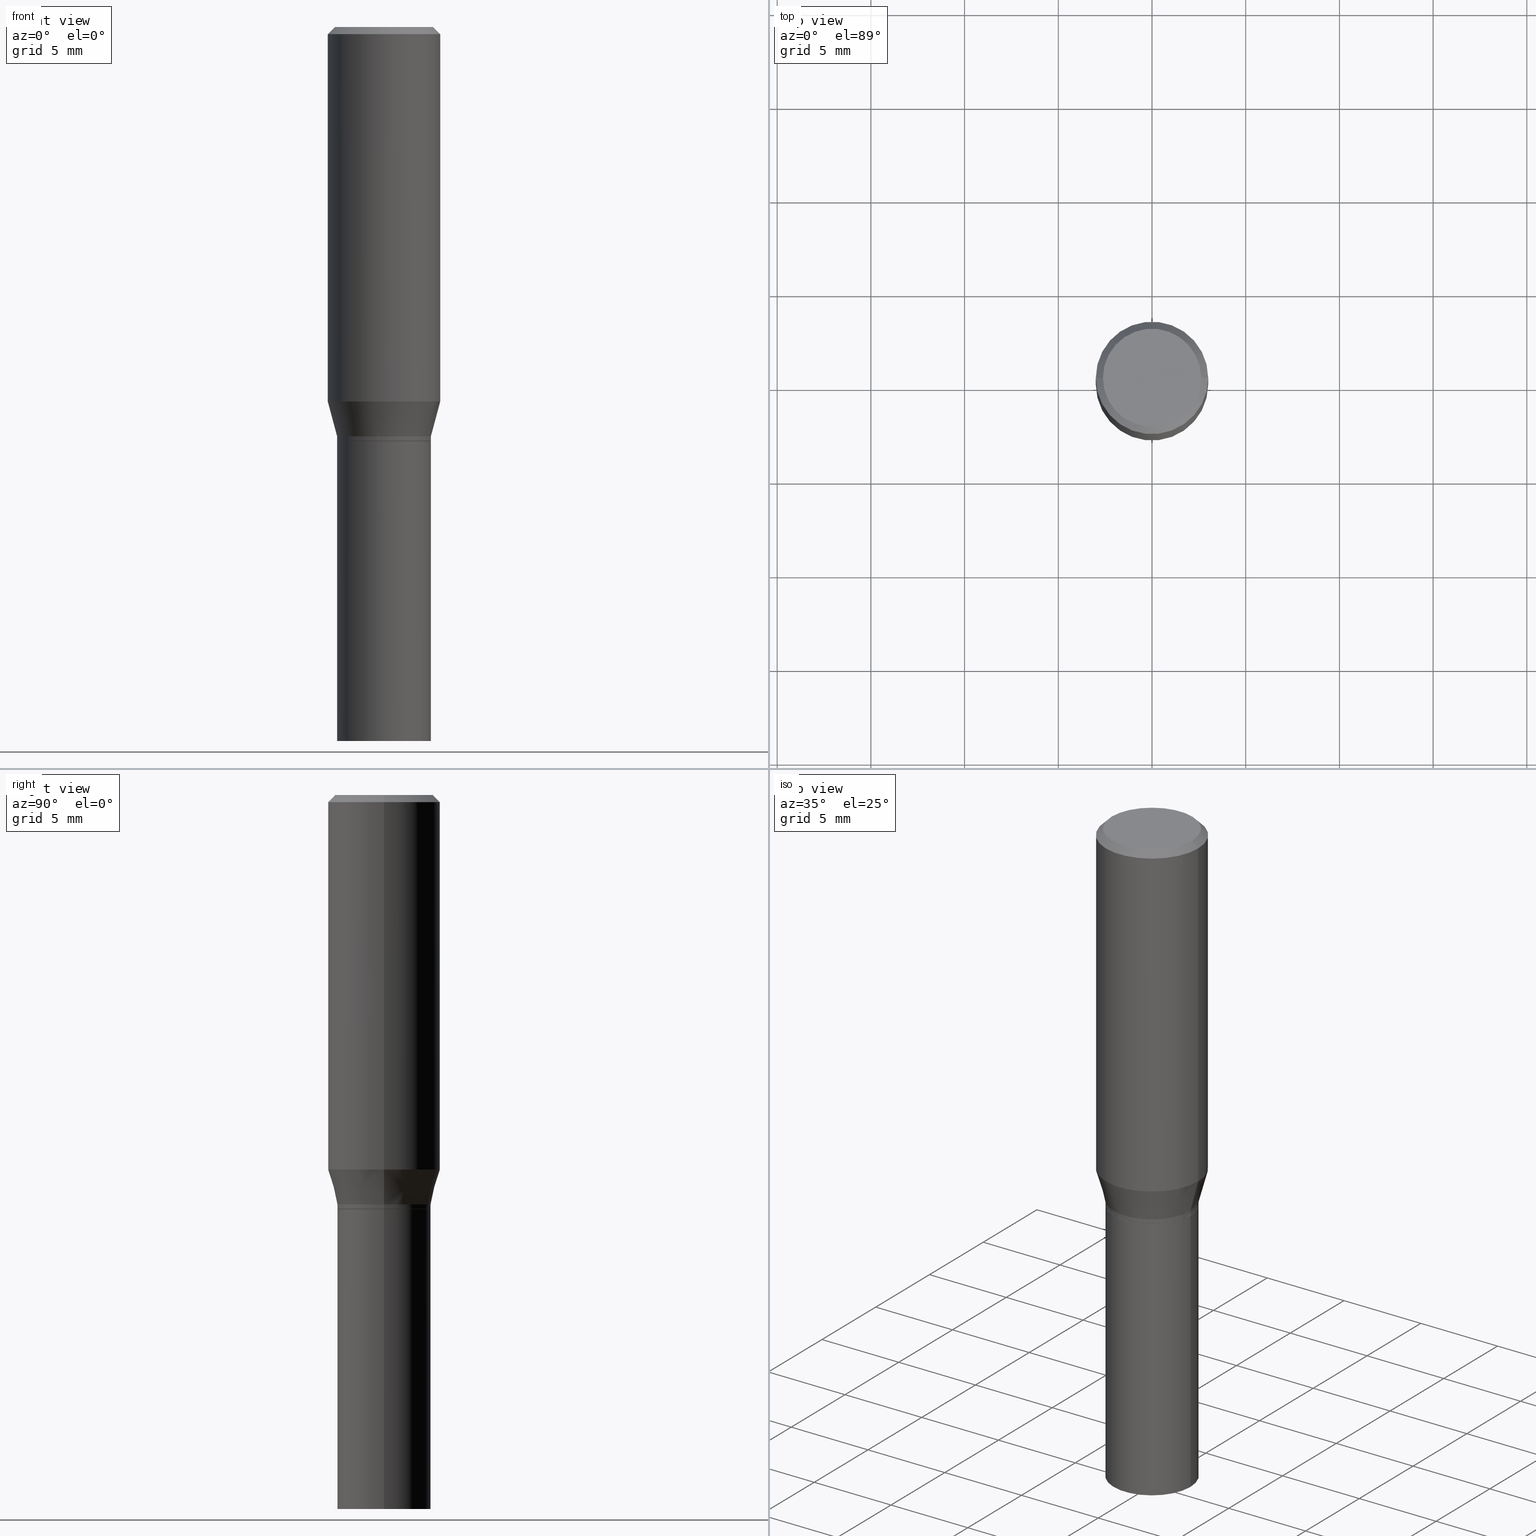
[diagram: canonical four-view strip — front | top / right | iso, engineering-drawing reading convention]
A machine part, canonical four-view strip (front | top / right | iso — engineering-drawing reading convention). The complete STEP part file that produces these views, byte-faithful:
ISO-10303-21;
HEADER;
FILE_DESCRIPTION (( 'STEP AP203' ),
    '1' );
FILE_NAME ('48807.STEP',
    '2024-03-12T19:54:19',
    ( '' ),
    ( '' ),
    'SwSTEP 2.0',
    'SolidWorks 2023',
    '' );
FILE_SCHEMA (( 'CONFIG_CONTROL_DESIGN' ));
ENDSEC;

DATA;
#1 = CARTESIAN_POINT ( 'NONE',  ( 3.668203209277705088E-31, -5.237222008264718399E-17, -0.01499999999999999944 ) ) ;
#2 = ORIENTED_EDGE ( 'NONE', *, *, #24, .F. ) ;
#3 = DIRECTION ( 'NONE',  ( -0.2588190451025215166, 5.211531920934551042E-15, 0.9659258262890679791 ) ) ;
#4 = EDGE_LOOP ( 'NONE', ( #287, #443, #262, #293 ) ) ;
#5 = EDGE_CURVE ( 'NONE', #220, #175, #407, .T. ) ;
#6 = PLANE ( 'NONE',  #46 ) ;
#7 = AXIS2_PLACEMENT_3D ( 'NONE', #168, #421, #238 ) ;
#8 = ORIENTED_EDGE ( 'NONE', *, *, #108, .F. ) ;
#9 = VECTOR ( 'NONE', #3, 39.37007874015748143 ) ;
#10 = ADVANCED_BREP_SHAPE_REPRESENTATION ( '48807', ( #27, #346, #251 ), #420 ) ;
#11 = PERSON_AND_ORGANIZATION_ROLE ( 'design_supplier' ) ;
#12 = ORIENTED_EDGE ( 'NONE', *, *, #279, .T. ) ;
#13 = COORDINATED_UNIVERSAL_TIME_OFFSET ( 5, 0, .BEHIND. ) ;
#14 = FACE_OUTER_BOUND ( 'NONE', #300, .T. ) ;
#15 = LENGTH_MEASURE_WITH_UNIT ( LENGTH_MEASURE( 0.02539999999999999897 ), #224 );
#16 = DIRECTION ( 'NONE',  ( -2.445468806185136597E-29, 3.491481338843145583E-15, 1.000000000000000000 ) ) ;
#17 = VECTOR ( 'NONE', #351, 39.37007874015748143 ) ;
#18 = CC_DESIGN_APPROVAL ( #309, ( #424 ) ) ;
#19 = COORDINATED_UNIVERSAL_TIME_OFFSET ( 5, 0, .BEHIND. ) ;
#20 = CARTESIAN_POINT ( 'NONE',  ( 2.127802408261687814E-29, -3.037937912927421995E-15, -0.8701000000000002066 ) ) ;
#21 = ORIENTED_EDGE ( 'NONE', *, *, #455, .T. ) ;
#22 = DIRECTION ( 'NONE',  ( 1.000000000000000000, -6.982962677686265922E-15, 4.883331232093008327E-29 ) ) ;
#23 = CARTESIAN_POINT ( 'NONE',  ( -0.09794999999999999540, -2.341961303250403994E-15, -0.8701000000000002066 ) ) ;
#24 = EDGE_CURVE ( 'NONE', #392, #359, #60, .T. ) ;
#25 = ORIENTED_EDGE ( 'NONE', *, *, #83, .F. ) ;
#26 = DIRECTION ( 'NONE',  ( -1.000000000000000000, 6.982962677686266711E-15, 0.000000000000000000 ) ) ;
#27 = MANIFOLD_SOLID_BREP ( 'Body-Move/Copy2[1]', #45 ) ;
#28 = ADVANCED_FACE ( 'NONE', ( #271 ), #333, .T. ) ;
#29 = FACE_OUTER_BOUND ( 'NONE', #249, .T. ) ;
#30 = AXIS2_PLACEMENT_3D ( 'NONE', #458, #31, #423 ) ;
#31 = DIRECTION ( 'NONE',  ( 2.438088387897960049E-29, -3.491481338843145188E-15, -1.000000000000000000 ) ) ;
#32 = DIRECTION ( 'NONE',  ( 1.000000000000000000, -6.982962677686265922E-15, 0.000000000000000000 ) ) ;
#33 = ORIENTED_EDGE ( 'NONE', *, *, #71, .T. ) ;
#34 = DIRECTION ( 'NONE',  ( -1.000000000000000000, 6.982962677686266711E-15, 0.000000000000000000 ) ) ;
#35 = ORIENTED_EDGE ( 'NONE', *, *, #41, .F. ) ;
#36 = CIRCLE ( 'NONE', #444, 0.1031000000000000111 ) ;
#37 = CARTESIAN_POINT ( 'NONE',  ( 4.647400995173613138E-45, -6.635256932220833331E-31, -1.900413116462290932E-16 ) ) ;
#38 = VERTEX_POINT ( 'NONE', #82 ) ;
#39 = CARTESIAN_POINT ( 'NONE',  ( 2.103347720199836269E-29, -3.003023099538989951E-15, -0.8601000000000000867 ) ) ;
#40 = VERTEX_POINT ( 'NONE', #52 ) ;
#41 = EDGE_CURVE ( 'NONE', #380, #70, #228, .T. ) ;
#42 = FACE_OUTER_BOUND ( 'NONE', #366, .T. ) ;
#43 = ORIENTED_EDGE ( 'NONE', *, *, #438, .F. ) ;
#44 = CC_DESIGN_PERSON_AND_ORGANIZATION_ASSIGNMENT ( #123, #191, ( #424 ) ) ;
#45 = CLOSED_SHELL ( 'NONE', ( #288, #125, #237, #367 ) ) ;
#46 = AXIS2_PLACEMENT_3D ( 'NONE', #365, #435, #360 ) ;
#47 = DATE_AND_TIME ( #90, #457 ) ;
#48 = DIRECTION ( 'NONE',  ( -2.445468806185136597E-29, 3.491481338843145583E-15, 1.000000000000000000 ) ) ;
#49 = ADVANCED_FACE ( 'NONE', ( #89 ), #122, .T. ) ;
#50 =( CONVERSION_BASED_UNIT ( 'INCH', #15 ) LENGTH_UNIT ( ) NAMED_UNIT ( #408 ) );
#51 = CARTESIAN_POINT ( 'NONE',  ( 0.09845000000000017626, -3.690495775157203695E-15, -0.8601000000000000867 ) ) ;
#52 = CARTESIAN_POINT ( 'NONE',  ( -0.1180999999999999966, -5.605231488820216014E-16, -0.01499999999999999944 ) ) ;
#53 = PERSON_AND_ORGANIZATION_ROLE ( 'design_owner' ) ;
#54 = ORIENTED_EDGE ( 'NONE', *, *, #388, .F. ) ;
#55 = PERSON_AND_ORGANIZATION ( #281, #213 ) ;
#56 = CARTESIAN_POINT ( 'NONE',  ( 0.1180999999999999966, -8.625970336194650129E-16, -0.01499999999999999944 ) ) ;
#57 = EDGE_CURVE ( 'NONE', #105, #151, #230, .T. ) ;
#58 = CARTESIAN_POINT ( 'NONE',  ( 4.647400995173613138E-45, -6.635256932220833331E-31, -1.900413116462290932E-16 ) ) ;
#59 = CARTESIAN_POINT ( 'NONE',  ( -0.1180999999999999966, 8.391509709326782957E-16, -5.809262341591043784E-30 ) ) ;
#60 = CIRCLE ( 'NONE', #369, 0.09794999999999999540 ) ;
#61 = CIRCLE ( 'NONE', #269, 0.1180999999999999966 ) ;
#62 = CARTESIAN_POINT ( 'NONE',  ( -0.09844999999999999585, -3.438050637240251581E-15, -0.8701000000000000956 ) ) ;
#63 = APPROVAL ( #261, 'UNSPECIFIED' ) ;
#64 = FACE_OUTER_BOUND ( 'NONE', #177, .T. ) ;
#65 = CARTESIAN_POINT ( 'NONE',  ( 2.127802408261687534E-29, -3.037937912927421601E-15, -0.8701000000000000956 ) ) ;
#66 = AXIS2_PLACEMENT_3D ( 'NONE', #391, #460, #182 ) ;
#67 = AXIS2_PLACEMENT_3D ( 'NONE', #286, #69, #208 ) ;
#68 = DIRECTION ( 'NONE',  ( -2.445468806185136597E-29, 3.491481338843145583E-15, 1.000000000000000000 ) ) ;
#69 = DIRECTION ( 'NONE',  ( -2.445468806185136597E-29, 3.491481338843145583E-15, 1.000000000000000000 ) ) ;
#70 = VERTEX_POINT ( 'NONE', #51 ) ;
#71 = EDGE_CURVE ( 'NONE', #38, #175, #155, .T. ) ;
#72 = DIRECTION ( 'NONE',  ( -2.445468806185136597E-29, 3.491481338843145583E-15, 1.000000000000000000 ) ) ;
#73 = EDGE_LOOP ( 'NONE', ( #344, #322 ) ) ;
#74 = AXIS2_PLACEMENT_3D ( 'NONE', #447, #48, #127 ) ;
#75 = CARTESIAN_POINT ( 'NONE',  ( 0.000000000000000000, 0.000000000000000000, 0.000000000000000000 ) ) ;
#76 = EDGE_CURVE ( 'NONE', #359, #392, #148, .T. ) ;
#77 = VERTEX_POINT ( 'NONE', #267 ) ;
#78 = DIRECTION ( 'NONE',  ( 1.000000000000000000, -6.982962677686265133E-15, 0.000000000000000000 ) ) ;
#79 = ORIENTED_EDGE ( 'NONE', *, *, #76, .F. ) ;
#80 = APPLICATION_CONTEXT ( 'configuration controlled 3d designs of mechanical parts and assemblies' ) ;
#81 = CALENDAR_DATE ( 2024, 12, 3 ) ;
#82 = CARTESIAN_POINT ( 'NONE',  ( 0.1031000000000000111, -7.849571885948552706E-16, -1.900413116462238423E-16 ) ) ;
#83 = EDGE_CURVE ( 'NONE', #140, #151, #186, .T. ) ;
#84 = CIRCLE ( 'NONE', #66, 0.1180999999999999966 ) ;
#85 = DATE_AND_TIME ( #336, #166 ) ;
#86 = CC_DESIGN_APPROVAL ( #63, ( #464 ) ) ;
#87 = CARTESIAN_POINT ( 'NONE',  ( 0.1180999999999999966, -8.246878922347480654E-16, 5.758764772215000440E-30 ) ) ;
#88 = VERTEX_POINT ( 'NONE', #303 ) ;
#89 = FACE_OUTER_BOUND ( 'NONE', #188, .T. ) ;
#90 = CALENDAR_DATE ( 2024, 12, 3 ) ;
#91 = LINE ( 'NONE', #372, #339 ) ;
#92 = EDGE_CURVE ( 'NONE', #392, #430, #223, .T. ) ;
#93 = AXIS2_PLACEMENT_3D ( 'NONE', #335, #305, #159 ) ;
#94 = DIRECTION ( 'NONE',  ( -0.7071067811863663843, 7.493145998869699406E-15, 0.7071067811867286501 ) ) ;
#95 = CC_DESIGN_PERSON_AND_ORGANIZATION_ASSIGNMENT ( #332, #11, ( #378 ) ) ;
#96 = DIRECTION ( 'NONE',  ( -0.7071067811865516806, 2.468850131082300842E-15, -0.7071067811865431318 ) ) ;
#97 = DATE_AND_TIME ( #270, #171 ) ;
#98 = CARTESIAN_POINT ( 'NONE',  ( -0.09845000000000005136, 6.995293233558189979E-16, -4.842691596355956844E-30 ) ) ;
#99 = CONICAL_SURFACE ( 'NONE', #396, 0.1180999999999999966, 0.7853981633974543852 ) ;
#100 = CARTESIAN_POINT ( 'NONE',  ( 3.576687321579069994E-29, -5.368277968210015545E-15, -1.500000000000000222 ) ) ;
#101 = CARTESIAN_POINT ( 'NONE',  ( 0.09844999999999999585, -5.924694683882931526E-15, -1.500000000000000222 ) ) ;
#102 = DIRECTION ( 'NONE',  ( -2.445468806185136597E-29, 3.491481338843145583E-15, 1.000000000000000000 ) ) ;
#103 = CIRCLE ( 'NONE', #135, 0.09844999999999999585 ) ;
#104 = CARTESIAN_POINT ( 'NONE',  ( -0.09845000000000017626, -2.303493776183169474E-15, -0.8601000000000000867 ) ) ;
#105 = VERTEX_POINT ( 'NONE', #410 ) ;
#106 = DIRECTION ( 'NONE',  ( 1.000000000000000000, -6.982962677686266711E-15, 4.876176775795935232E-29 ) ) ;
#107 = ORIENTED_EDGE ( 'NONE', *, *, #41, .T. ) ;
#108 = EDGE_CURVE ( 'NONE', #430, #70, #91, .T. ) ;
#109 = LINE ( 'NONE', #142, #294 ) ;
#110 = ORIENTED_EDGE ( 'NONE', *, *, #172, .T. ) ;
#111 = VECTOR ( 'NONE', #118, 39.37007874015748143 ) ;
#112 = AXIS2_PLACEMENT_3D ( 'NONE', #39, #72, #184 ) ;
#113 = DIRECTION ( 'NONE',  ( 1.000000000000000000, -6.982962677686266711E-15, 0.000000000000000000 ) ) ;
#114 = ORIENTED_EDGE ( 'NONE', *, *, #342, .T. ) ;
#115 = DIRECTION ( 'NONE',  ( 1.000000000000000000, 0.000000000000000000, 0.000000000000000000 ) ) ;
#116 = ORIENTED_EDGE ( 'NONE', *, *, #338, .F. ) ;
#117 = PRODUCT ( '48807', '48807', '', ( #154 ) ) ;
#118 = DIRECTION ( 'NONE',  ( 0.7071067811863663843, -2.468850131080359456E-15, 0.7071067811867286501 ) ) ;
#119 = APPLICATION_CONTEXT ( 'configuration controlled 3d designs of mechanical parts and assemblies' ) ;
#120 = PERSON_AND_ORGANIZATION ( #281, #213 ) ;
#121 = VECTOR ( 'NONE', #150, 39.37007874015748143 ) ;
#122 = CYLINDRICAL_SURFACE ( 'NONE', #93, 0.1180999999999999966 ) ;
#123 = PERSON_AND_ORGANIZATION ( #281, #213 ) ;
#124 = CARTESIAN_POINT ( 'NONE',  ( 2.103347720199836269E-29, -3.003023099538989951E-15, -0.8601000000000000867 ) ) ;
#125 = ADVANCED_FACE ( 'NONE', ( #14 ), #375, .F. ) ;
#126 = DATE_AND_TIME ( #373, #362 ) ;
#127 = DIRECTION ( 'NONE',  ( 1.000000000000000000, -6.982962677686265922E-15, 0.000000000000000000 ) ) ;
#128 = DIRECTION ( 'NONE',  ( -2.445468806185136877E-29, 3.491481338843145188E-15, 1.000000000000000000 ) ) ;
#129 = CARTESIAN_POINT ( 'NONE',  ( -0.1180999999999999966, 7.723156721521009862E-16, -0.01499999999999999944 ) ) ;
#130 = CYLINDRICAL_SURFACE ( 'NONE', #268, 0.09844999999999999585 ) ;
#131 = ORIENTED_EDGE ( 'NONE', *, *, #258, .F. ) ;
#132 = CC_DESIGN_DATE_AND_TIME_ASSIGNMENT ( #85, #334, ( #464 ) ) ;
#133 = SHAPE_DEFINITION_REPRESENTATION ( #263, #10 ) ;
#134 = CARTESIAN_POINT ( 'NONE',  ( 0.000000000000000000, 0.000000000000000000, 0.000000000000000000 ) ) ;
#135 = AXIS2_PLACEMENT_3D ( 'NONE', #276, #315, #311 ) ;
#136 = LINE ( 'NONE', #98, #331 ) ;
#137 = EDGE_CURVE ( 'NONE', #359, #77, #272, .T. ) ;
#138 = DIRECTION ( 'NONE',  ( -2.445468806185136597E-29, 3.491481338843145583E-15, 1.000000000000000000 ) ) ;
#139 = CARTESIAN_POINT ( 'NONE',  ( 2.127802408261687534E-29, -3.037937912927421601E-15, -0.8701000000000000956 ) ) ;
#140 = VERTEX_POINT ( 'NONE', #345 ) ;
#141 = AXIS2_PLACEMENT_3D ( 'NONE', #139, #326, #32 ) ;
#142 = CARTESIAN_POINT ( 'NONE',  ( 0.09845000000000017626, -3.690495775157203695E-15, -0.8601000000000000867 ) ) ;
#143 = ORIENTED_EDGE ( 'NONE', *, *, #455, .F. ) ;
#144 = DIRECTION ( 'NONE',  ( -2.445468806185136597E-29, 3.491481338843145583E-15, 1.000000000000000000 ) ) ;
#145 = ORIENTED_EDGE ( 'NONE', *, *, #291, .T. ) ;
#146 = DIRECTION ( 'NONE',  ( 0.2588190451025215166, 1.565188264969620784E-15, 0.9659258262890679791 ) ) ;
#147 = ORIENTED_EDGE ( 'NONE', *, *, #218, .T. ) ;
#148 = CIRCLE ( 'NONE', #156, 0.09794999999999999540 ) ;
#149 = CC_DESIGN_APPROVAL ( #226, ( #378 ) ) ;
#150 = DIRECTION ( 'NONE',  ( -2.445468806185136877E-29, 3.491481338843145188E-15, 1.000000000000000000 ) ) ;
#151 = VERTEX_POINT ( 'NONE', #62 ) ;
#152 = CARTESIAN_POINT ( 'NONE',  ( 0.000000000000000000, 0.000000000000000000, 0.000000000000000000 ) ) ;
#153 = DIRECTION ( 'NONE',  ( 1.000000000000000000, -6.982962677686266711E-15, 4.876176775795936353E-29 ) ) ;
#154 = MECHANICAL_CONTEXT ( 'NONE', #119, 'mechanical' ) ;
#155 = LINE ( 'NONE', #56, #204 ) ;
#156 = AXIS2_PLACEMENT_3D ( 'NONE', #192, #337, #370 ) ;
#157 = PERSON_AND_ORGANIZATION ( #281, #213 ) ;
#158 = LOCAL_TIME ( 15, 54, 19.00000000000000000, #13 ) ;
#159 = DIRECTION ( 'NONE',  ( 1.000000000000000000, -6.982962677686266711E-15, 4.876176775795936353E-29 ) ) ;
#160 = ORIENTED_EDGE ( 'NONE', *, *, #163, .F. ) ;
#161 = PRODUCT_RELATED_PRODUCT_CATEGORY ( 'detail', '', ( #117 ) ) ;
#162 = ORIENTED_EDGE ( 'NONE', *, *, #5, .T. ) ;
#163 = EDGE_CURVE ( 'NONE', #77, #430, #419, .T. ) ;
#164 = CIRCLE ( 'NONE', #403, 0.1031000000000000111 ) ;
#165 = CARTESIAN_POINT ( 'NONE',  ( 0.1180999999999999966, -8.770601123173952432E-16, -0.01499999999999999944 ) ) ;
#166 = LOCAL_TIME ( 15, 54, 19.00000000000000000, #401 ) ;
#167 = FACE_OUTER_BOUND ( 'NONE', #324, .T. ) ;
#168 = CARTESIAN_POINT ( 'NONE',  ( 3.668203209277704895E-29, -5.237222008264718177E-15, -1.500000000000000222 ) ) ;
#169 = PLANE ( 'NONE',  #30 ) ;
#170 = AXIS2_PLACEMENT_3D ( 'NONE', #452, #310, #451 ) ;
#171 = LOCAL_TIME ( 15, 54, 19.00000000000000000, #232 ) ;
#172 = EDGE_CURVE ( 'NONE', #77, #380, #136, .T. ) ;
#173 = DIRECTION ( 'NONE',  ( -2.445468806185136597E-29, 3.491481338843145583E-15, 1.000000000000000000 ) ) ;
#174 = DIRECTION ( 'NONE',  ( 1.000000000000000000, -6.982962677686266711E-15, 0.000000000000000000 ) ) ;
#175 = VERTEX_POINT ( 'NONE', #165 ) ;
#176 = CARTESIAN_POINT ( 'NONE',  ( 2.127802408261687814E-29, -3.037937912927421995E-15, -0.8701000000000002066 ) ) ;
#177 = EDGE_LOOP ( 'NONE', ( #12, #254, #25, #405 ) ) ;
#178 = VECTOR ( 'NONE', #257, 39.37007874015748143 ) ;
#179 = CIRCLE ( 'NONE', #316, 0.09844999999999991258 ) ;
#180 = DIRECTION ( 'NONE',  ( -2.445468806185136597E-29, 3.491481338843145583E-15, 1.000000000000000000 ) ) ;
#181 = EDGE_LOOP ( 'NONE', ( #327, #145, #394, #54 ) ) ;
#182 = DIRECTION ( 'NONE',  ( 1.000000000000000000, -6.982962677686266711E-15, 0.000000000000000000 ) ) ;
#183 = ORIENTED_EDGE ( 'NONE', *, *, #325, .T. ) ;
#184 = DIRECTION ( 'NONE',  ( 1.000000000000000000, -6.982962677686267499E-15, 0.000000000000000000 ) ) ;
#185 = VERTEX_POINT ( 'NONE', #201 ) ;
#186 = CIRCLE ( 'NONE', #74, 0.09844999999999999585 ) ;
#187 = PERSON_AND_ORGANIZATION_ROLE ( 'creator' ) ;
#188 = EDGE_LOOP ( 'NONE', ( #131, #114, #162, #116 ) ) ;
#189 = APPROVAL_STATUS ( 'not_yet_approved' ) ;
#190 = DIRECTION ( 'NONE',  ( -2.445468806185136877E-29, 3.491481338843145188E-15, 1.000000000000000000 ) ) ;
#191 = PERSON_AND_ORGANIZATION_ROLE ( 'creator' ) ;
#192 = CARTESIAN_POINT ( 'NONE',  ( 2.127802408261687814E-29, -3.037937912927421995E-15, -0.8701000000000002066 ) ) ;
#193 = ADVANCED_FACE ( 'NONE', ( #454 ), #317, .T. ) ;
#194 = AXIS2_PLACEMENT_3D ( 'NONE', #124, #16, #196 ) ;
#195 = CC_DESIGN_SECURITY_CLASSIFICATION ( #464, ( #378 ) ) ;
#196 = DIRECTION ( 'NONE',  ( 1.000000000000000000, -6.982962677686267499E-15, 0.000000000000000000 ) ) ;
#197 = ORIENTED_EDGE ( 'NONE', *, *, #325, .F. ) ;
#198 = DIRECTION ( 'NONE',  ( 1.000000000000000000, -6.982962677686266711E-15, 0.000000000000000000 ) ) ;
#199 = CARTESIAN_POINT ( 'NONE',  ( 3.668203209277705088E-31, -5.237222008264718399E-17, -0.01499999999999999944 ) ) ;
#200 = DIRECTION ( 'NONE',  ( -2.445468806185136597E-29, 3.491481338843145583E-15, 1.000000000000000000 ) ) ;
#201 = CARTESIAN_POINT ( 'NONE',  ( -0.1031000000000000111, 7.461295621107772493E-16, -1.900413116462341961E-16 ) ) ;
#202 = DIRECTION ( 'NONE',  ( -2.438088387897960049E-29, 3.491481338843145188E-15, 1.000000000000000000 ) ) ;
#203 = EDGE_LOOP ( 'NONE', ( #319, #33, #364, #432 ) ) ;
#204 = VECTOR ( 'NONE', #298, 39.37007874015748854 ) ;
#205 = CARTESIAN_POINT ( 'NONE',  ( -0.09794999999999999540, -2.339312076076292793E-15, -0.8701000000000002066 ) ) ;
#206 = ORIENTED_EDGE ( 'NONE', *, *, #92, .T. ) ;
#207 = EDGE_CURVE ( 'NONE', #220, #88, #377, .T. ) ;
#208 = DIRECTION ( 'NONE',  ( 1.000000000000000000, -6.982962677686269077E-15, 0.000000000000000000 ) ) ;
#209 = ORIENTED_EDGE ( 'NONE', *, *, #306, .F. ) ;
#210 = DIRECTION ( 'NONE',  ( 2.445468806185136597E-29, -3.491481338843145583E-15, -1.000000000000000000 ) ) ;
#211 = EDGE_LOOP ( 'NONE', ( #43, #107, #462, #400 ) ) ;
#212 = VECTOR ( 'NONE', #94, 39.37007874015748143 ) ;
#213 = ORGANIZATION ( 'UNSPECIFIED', 'UNSPECIFIED', '' ) ;
#214 = CARTESIAN_POINT ( 'NONE',  ( 2.103347720199836269E-29, -3.003023099538989951E-15, -0.8601000000000000867 ) ) ;
#215 = ORIENTED_EDGE ( 'NONE', *, *, #5, .F. ) ;
#216 = CARTESIAN_POINT ( 'NONE',  ( 2.126579673858595013E-29, -3.036192172257999703E-15, -0.8696000000000000396 ) ) ;
#217 = EDGE_LOOP ( 'NONE', ( #426, #357, #265, #215 ) ) ;
#218 = EDGE_CURVE ( 'NONE', #38, #185, #164, .T. ) ;
#219 = PERSON_AND_ORGANIZATION ( #281, #213 ) ;
#220 = VERTEX_POINT ( 'NONE', #273 ) ;
#221 = CIRCLE ( 'NONE', #141, 0.09844999999999999585 ) ;
#222 = APPLICATION_PROTOCOL_DEFINITION ( 'international standard', 'config_control_design', 1994, #80 ) ;
#223 = LINE ( 'NONE', #227, #111 ) ;
#224 =( LENGTH_UNIT ( ) NAMED_UNIT ( * ) SI_UNIT ( $, .METRE. ) );
#225 = DIRECTION ( 'NONE',  ( -2.445468806185136597E-29, 3.491481338843145583E-15, 1.000000000000000000 ) ) ;
#226 = APPROVAL ( #256, 'UNSPECIFIED' ) ;
#227 = CARTESIAN_POINT ( 'NONE',  ( 0.09794999999999999540, -3.721919107206791548E-15, -0.8701000000000002066 ) ) ;
#228 = CIRCLE ( 'NONE', #194, 0.09845000000000017626 ) ;
#229 = CONICAL_SURFACE ( 'NONE', #112, 0.09845000000000017626, 0.2617993877991502405 ) ;
#230 = LINE ( 'NONE', #402, #353 ) ;
#231 = CARTESIAN_POINT ( 'NONE',  ( 2.126579673858595013E-29, -3.036192172257999703E-15, -0.8696000000000000396 ) ) ;
#232 = COORDINATED_UNIVERSAL_TIME_OFFSET ( 5, 0, .BEHIND. ) ;
#233 = LINE ( 'NONE', #59, #17 ) ;
#234 = AXIS2_PLACEMENT_3D ( 'NONE', #176, #465, #78 ) ;
#235 = DIRECTION ( 'NONE',  ( 1.000000000000000000, -6.982962677686269077E-15, 0.000000000000000000 ) ) ;
#236 = AXIS2_PLACEMENT_3D ( 'NONE', #433, #102, #241 ) ;
#237 = ADVANCED_FACE ( 'NONE', ( #415 ), #418, .T. ) ;
#238 = DIRECTION ( 'NONE',  ( 1.000000000000000000, -6.982962677686265922E-15, 0.000000000000000000 ) ) ;
#239 = CC_DESIGN_PERSON_AND_ORGANIZATION_ASSIGNMENT ( #440, #404, ( #464 ) ) ;
#240 = FACE_OUTER_BOUND ( 'NONE', #296, .T. ) ;
#241 = DIRECTION ( 'NONE',  ( 1.000000000000000000, -6.982962677686267499E-15, 0.000000000000000000 ) ) ;
#242 = AXIS2_PLACEMENT_3D ( 'NONE', #214, #68, #358 ) ;
#243 = FACE_OUTER_BOUND ( 'NONE', #280, .T. ) ;
#244 = ORIENTED_EDGE ( 'NONE', *, *, #279, .F. ) ;
#245 = CARTESIAN_POINT ( 'NONE',  ( 0.09844999999999991258, -3.723664847876212263E-15, -0.8696000000000000396 ) ) ;
#246 = VERTEX_POINT ( 'NONE', #101 ) ;
#247 = EDGE_CURVE ( 'NONE', #185, #40, #385, .T. ) ;
#248 = FACE_OUTER_BOUND ( 'NONE', #211, .T. ) ;
#249 = EDGE_LOOP ( 'NONE', ( #183, #147 ) ) ;
#250 = VECTOR ( 'NONE', #96, 39.37007874015748854 ) ;
#251 = AXIS2_PLACEMENT_3D ( 'NONE', #152, #302, #115 ) ;
#252 = DIRECTION ( 'NONE',  ( 1.000000000000000000, -6.982962677686265133E-15, 0.000000000000000000 ) ) ;
#253 = CC_DESIGN_PERSON_AND_ORGANIZATION_ASSIGNMENT ( #409, #53, ( #117 ) ) ;
#254 = ORIENTED_EDGE ( 'NONE', *, *, #57, .T. ) ;
#255 = EDGE_LOOP ( 'NONE', ( #434, #110, #143, #8 ) ) ;
#256 = APPROVAL_STATUS ( 'not_yet_approved' ) ;
#257 = DIRECTION ( 'NONE',  ( -2.445468806185136877E-29, 3.491481338843145188E-15, 1.000000000000000000 ) ) ;
#258 = EDGE_CURVE ( 'NONE', #88, #40, #233, .T. ) ;
#259 = AXIS2_PLACEMENT_3D ( 'NONE', #231, #352, #198 ) ;
#260 = APPROVAL_PERSON_ORGANIZATION ( #157, #309, #371 ) ;
#261 = APPROVAL_STATUS ( 'not_yet_approved' ) ;
#262 = ORIENTED_EDGE ( 'NONE', *, *, #414, .F. ) ;
#263 = PRODUCT_DEFINITION_SHAPE ( 'NONE', 'NONE',  #424 ) ;
#264 = DATE_TIME_ROLE ( 'creation_date' ) ;
#265 = ORIENTED_EDGE ( 'NONE', *, *, #349, .F. ) ;
#266 =( NAMED_UNIT ( * ) SI_UNIT ( $, .STERADIAN. ) SOLID_ANGLE_UNIT ( ) );
#267 = CARTESIAN_POINT ( 'NONE',  ( -0.09844999999999991258, -2.336662848902181986E-15, -0.8696000000000000396 ) ) ;
#268 = AXIS2_PLACEMENT_3D ( 'NONE', #386, #173, #277 ) ;
#269 = AXIS2_PLACEMENT_3D ( 'NONE', #1, #292, #113 ) ;
#270 = CALENDAR_DATE ( 2024, 12, 3 ) ;
#271 = FACE_OUTER_BOUND ( 'NONE', #217, .T. ) ;
#272 = LINE ( 'NONE', #23, #212 ) ;
#273 = CARTESIAN_POINT ( 'NONE',  ( 0.1180999999999999966, -3.571663911781501372E-15, -0.7867652016312725038 ) ) ;
#274 = UNCERTAINTY_MEASURE_WITH_UNIT (LENGTH_MEASURE( 1.000000000000000082E-05 ), #50, 'distance_accuracy_value', 'NONE');
#275 = ADVANCED_FACE ( 'NONE', ( #167 ), #99, .T. ) ;
#276 = CARTESIAN_POINT ( 'NONE',  ( 3.668203209277704895E-29, -5.237222008264718177E-15, -1.500000000000000222 ) ) ;
#277 = DIRECTION ( 'NONE',  ( 1.000000000000000000, -6.982962677686266711E-15, 4.876176775795936353E-29 ) ) ;
#278 = CARTESIAN_POINT ( 'NONE',  ( 2.127802408261687814E-29, -3.037937912927421995E-15, -0.8701000000000002066 ) ) ;
#279 = EDGE_CURVE ( 'NONE', #246, #105, #103, .T. ) ;
#280 = EDGE_LOOP ( 'NONE', ( #361, #341, #206, #160 ) ) ;
#281 = PERSON ( 'UNSPECIFIED', 'UNSPECIFIED', 'UNSPECIFIED', ('UNSPECIFIED'), ('UNSPECIFIED'), ('UNSPECIFIED') ) ;
#282 = CARTESIAN_POINT ( 'NONE',  ( -0.09845000000000017626, -2.105659412398621996E-15, -0.8601000000000000867 ) ) ;
#283 = CONICAL_SURFACE ( 'NONE', #347, 0.1180999999999999966, 0.7853981633974543852 ) ;
#284 = EDGE_LOOP ( 'NONE', ( #439, #437, #374, #35 ) ) ;
#285 = CIRCLE ( 'NONE', #236, 0.09845000000000017626 ) ;
#286 = CARTESIAN_POINT ( 'NONE',  ( 1.924009758381236534E-29, -2.746976019546752715E-15, -0.7867652016312725038 ) ) ;
#287 = ORIENTED_EDGE ( 'NONE', *, *, #24, .T. ) ;
#288 = ADVANCED_FACE ( 'NONE', ( #64 ), #130, .T. ) ;
#289 = DIRECTION ( 'NONE',  ( -2.445468806185136597E-29, 3.491481338843145583E-15, 1.000000000000000000 ) ) ;
#290 = ORIENTED_EDGE ( 'NONE', *, *, #71, .F. ) ;
#291 = EDGE_CURVE ( 'NONE', #105, #246, #436, .T. ) ;
#292 = DIRECTION ( 'NONE',  ( -2.445468806185136597E-29, 3.491481338843145583E-15, 1.000000000000000000 ) ) ;
#293 = ORIENTED_EDGE ( 'NONE', *, *, #92, .F. ) ;
#294 = VECTOR ( 'NONE', #146, 39.37007874015748143 ) ;
#295 = APPROVAL_DATE_TIME ( #126, #309 ) ;
#296 = EDGE_LOOP ( 'NONE', ( #2, #79 ) ) ;
#297 = SECURITY_CLASSIFICATION_LEVEL ( 'unclassified' ) ;
#298 = DIRECTION ( 'NONE',  ( 0.7071067811865516806, -7.319954787623268667E-15, -0.7071067811865431318 ) ) ;
#299 = ADVANCED_FACE ( 'NONE', ( #29 ), #169, .F. ) ;
#300 = EDGE_LOOP ( 'NONE', ( #244, #399 ) ) ;
#301 = CIRCLE ( 'NONE', #67, 0.1180999999999999966 ) ;
#302 = DIRECTION ( 'NONE',  ( 0.000000000000000000, 0.000000000000000000, 1.000000000000000000 ) ) ;
#303 = CARTESIAN_POINT ( 'NONE',  ( -0.1180999999999999966, -1.907825048614074518E-15, -0.7867652016312725038 ) ) ;
#304 = ADVANCED_FACE ( 'NONE', ( #240 ), #387, .F. ) ;
#305 = DIRECTION ( 'NONE',  ( -2.445468806185136597E-29, 3.491481338843145583E-15, 1.000000000000000000 ) ) ;
#306 = EDGE_CURVE ( 'NONE', #70, #220, #109, .T. ) ;
#307 = CARTESIAN_POINT ( 'NONE',  ( 0.000000000000000000, 0.000000000000000000, 0.000000000000000000 ) ) ;
#308 = CLOSED_SHELL ( 'NONE', ( #193, #406, #382, #28, #453, #355, #49, #275, #299, #304, #376, #422 ) ) ;
#309 = APPROVAL ( #189, 'UNSPECIFIED' ) ;
#310 = DIRECTION ( 'NONE',  ( -2.445468806185136597E-29, 3.491481338843145583E-15, 1.000000000000000000 ) ) ;
#311 = DIRECTION ( 'NONE',  ( 1.000000000000000000, -6.982962677686265922E-15, 0.000000000000000000 ) ) ;
#312 = DIRECTION ( 'NONE',  ( 1.000000000000000000, -6.982962677686266711E-15, 4.876176775795935232E-29 ) ) ;
#313 = CC_DESIGN_DATE_AND_TIME_ASSIGNMENT ( #442, #264, ( #424 ) ) ;
#314 = AXIS2_PLACEMENT_3D ( 'NONE', #307, #441, #153 ) ;
#315 = DIRECTION ( 'NONE',  ( -2.445468806185136597E-29, 3.491481338843145583E-15, 1.000000000000000000 ) ) ;
#316 = AXIS2_PLACEMENT_3D ( 'NONE', #216, #323, #174 ) ;
#317 = CYLINDRICAL_SURFACE ( 'NONE', #411, 0.09845000000000005136 ) ;
#318 = DIRECTION ( 'NONE',  ( 1.000000000000000000, -6.982962677686265922E-15, 4.883331232093008327E-29 ) ) ;
#319 = ORIENTED_EDGE ( 'NONE', *, *, #218, .F. ) ;
#320 = FACE_OUTER_BOUND ( 'NONE', #203, .T. ) ;
#321 = CONICAL_SURFACE ( 'NONE', #427, 0.09794999999999999540, 0.7853981633971921505 ) ;
#322 = ORIENTED_EDGE ( 'NONE', *, *, #388, .T. ) ;
#323 = DIRECTION ( 'NONE',  ( -2.445468806185136597E-29, 3.491481338843145583E-15, 1.000000000000000000 ) ) ;
#324 = EDGE_LOOP ( 'NONE', ( #290, #197, #448, #466 ) ) ;
#325 = EDGE_CURVE ( 'NONE', #185, #38, #36, .T. ) ;
#326 = DIRECTION ( 'NONE',  ( -2.445468806185136597E-29, 3.491481338843145583E-15, 1.000000000000000000 ) ) ;
#327 = ORIENTED_EDGE ( 'NONE', *, *, #57, .F. ) ;
#328 = CC_DESIGN_PERSON_AND_ORGANIZATION_ASSIGNMENT ( #55, #187, ( #378 ) ) ;
#329 = DIRECTION ( 'NONE',  ( 1.000000000000000000, -6.982962677686265922E-15, 4.876176775795935793E-29 ) ) ;
#330 = ORIENTED_EDGE ( 'NONE', *, *, #207, .F. ) ;
#331 = VECTOR ( 'NONE', #459, 39.37007874015748143 ) ;
#332 = PERSON_AND_ORGANIZATION ( #281, #213 ) ;
#333 = CYLINDRICAL_SURFACE ( 'NONE', #314, 0.1180999999999999966 ) ;
#334 = DATE_TIME_ROLE ( 'classification_date' ) ;
#335 = CARTESIAN_POINT ( 'NONE',  ( 0.000000000000000000, 0.000000000000000000, 0.000000000000000000 ) ) ;
#336 = CALENDAR_DATE ( 2024, 12, 3 ) ;
#337 = DIRECTION ( 'NONE',  ( -2.445468806185136597E-29, 3.491481338843145583E-15, 1.000000000000000000 ) ) ;
#338 = EDGE_CURVE ( 'NONE', #40, #175, #61, .T. ) ;
#339 = VECTOR ( 'NONE', #190, 39.37007874015748143 ) ;
#340 = COORDINATED_UNIVERSAL_TIME_OFFSET ( 5, 0, .BEHIND. ) ;
#341 = ORIENTED_EDGE ( 'NONE', *, *, #76, .T. ) ;
#342 = EDGE_CURVE ( 'NONE', #88, #220, #301, .T. ) ;
#343 =( NAMED_UNIT ( * ) PLANE_ANGLE_UNIT ( ) SI_UNIT ( $, .RADIAN. ) );
#344 = ORIENTED_EDGE ( 'NONE', *, *, #83, .T. ) ;
#345 = CARTESIAN_POINT ( 'NONE',  ( 0.09844999999999999585, -3.725410588545634555E-15, -0.8701000000000000956 ) ) ;
#346 = MANIFOLD_SOLID_BREP ( 'Body-Move/Copy2[2]', #308 ) ;
#347 = AXIS2_PLACEMENT_3D ( 'NONE', #395, #210, #34 ) ;
#348 = APPROVAL_PERSON_ORGANIZATION ( #219, #226, #368 ) ;
#349 = EDGE_CURVE ( 'NONE', #175, #40, #84, .T. ) ;
#350 = DIRECTION ( 'NONE',  ( 2.445468806185136597E-29, -3.491481338843145583E-15, -1.000000000000000000 ) ) ;
#351 = DIRECTION ( 'NONE',  ( -2.445468806185136877E-29, 3.491481338843145188E-15, 1.000000000000000000 ) ) ;
#352 = DIRECTION ( 'NONE',  ( -2.445468806185136597E-29, 3.491481338843145583E-15, 1.000000000000000000 ) ) ;
#353 = VECTOR ( 'NONE', #128, 39.37007874015748143 ) ;
#354 = DIRECTION ( 'NONE',  ( -2.438088387897960049E-29, 3.491481338843145188E-15, 1.000000000000000000 ) ) ;
#355 = ADVANCED_FACE ( 'NONE', ( #248 ), #389, .T. ) ;
#356 = CARTESIAN_POINT ( 'NONE',  ( 0.09844999999999999585, -6.874726756182129545E-16, 4.800596035771099214E-30 ) ) ;
#357 = ORIENTED_EDGE ( 'NONE', *, *, #258, .T. ) ;
#358 = DIRECTION ( 'NONE',  ( 1.000000000000000000, -6.982962677686267499E-15, 0.000000000000000000 ) ) ;
#359 = VERTEX_POINT ( 'NONE', #205 ) ;
#360 = DIRECTION ( 'NONE',  ( -1.000000000000000000, 6.982962677686265922E-15, -4.876176775795935793E-29 ) ) ;
#361 = ORIENTED_EDGE ( 'NONE', *, *, #137, .F. ) ;
#362 = LOCAL_TIME ( 15, 54, 19.00000000000000000, #340 ) ;
#363 = FACE_OUTER_BOUND ( 'NONE', #73, .T. ) ;
#364 = ORIENTED_EDGE ( 'NONE', *, *, #349, .T. ) ;
#365 = CARTESIAN_POINT ( 'NONE',  ( 6.874726756182340565E-16, 0.09844999999999695661, -0.8701000000000005397 ) ) ;
#366 = EDGE_LOOP ( 'NONE', ( #21, #397, #330, #209 ) ) ;
#367 = ADVANCED_FACE ( 'NONE', ( #363 ), #6, .F. ) ;
#368 = APPROVAL_ROLE ( '' ) ;
#369 = AXIS2_PLACEMENT_3D ( 'NONE', #20, #225, #445 ) ;
#370 = DIRECTION ( 'NONE',  ( 1.000000000000000000, -6.982962677686265133E-15, 0.000000000000000000 ) ) ;
#371 = APPROVAL_ROLE ( '' ) ;
#372 = CARTESIAN_POINT ( 'NONE',  ( 0.09845000000000005136, -6.874726756182133489E-16, 4.800596035771100615E-30 ) ) ;
#373 = CALENDAR_DATE ( 2024, 12, 3 ) ;
#374 = ORIENTED_EDGE ( 'NONE', *, *, #108, .T. ) ;
#375 = PLANE ( 'NONE',  #456 ) ;
#376 = ADVANCED_FACE ( 'NONE', ( #243 ), #321, .T. ) ;
#377 = CIRCLE ( 'NONE', #384, 0.1180999999999999966 ) ;
#378 = PRODUCT_DEFINITION_FORMATION_WITH_SPECIFIED_SOURCE ( 'ANY', '', #117, .NOT_KNOWN. ) ;
#379 = APPROVAL_DATE_TIME ( #47, #226 ) ;
#380 = VERTEX_POINT ( 'NONE', #282 ) ;
#381 = DIRECTION ( 'NONE',  ( -2.445468806185136597E-29, 3.491481338843145583E-15, 1.000000000000000000 ) ) ;
#382 = ADVANCED_FACE ( 'NONE', ( #320 ), #283, .T. ) ;
#383 = CARTESIAN_POINT ( 'NONE',  ( 1.924009758381236534E-29, -2.746976019546752715E-15, -0.7867652016312725038 ) ) ;
#384 = AXIS2_PLACEMENT_3D ( 'NONE', #383, #138, #235 ) ;
#385 = LINE ( 'NONE', #129, #250 ) ;
#386 = CARTESIAN_POINT ( 'NONE',  ( 0.000000000000000000, 0.000000000000000000, 0.000000000000000000 ) ) ;
#387 = PLANE ( 'NONE',  #449 ) ;
#388 = EDGE_CURVE ( 'NONE', #151, #140, #221, .T. ) ;
#389 = CONICAL_SURFACE ( 'NONE', #242, 0.09845000000000017626, 0.2617993877991502405 ) ;
#390 = LINE ( 'NONE', #356, #121 ) ;
#391 = CARTESIAN_POINT ( 'NONE',  ( 3.668203209277705088E-31, -5.237222008264718399E-17, -0.01499999999999999944 ) ) ;
#392 = VERTEX_POINT ( 'NONE', #425 ) ;
#393 = LINE ( 'NONE', #104, #9 ) ;
#394 = ORIENTED_EDGE ( 'NONE', *, *, #461, .T. ) ;
#395 = CARTESIAN_POINT ( 'NONE',  ( 3.668203209277705088E-31, -5.237222008264718399E-17, -0.01499999999999999944 ) ) ;
#396 = AXIS2_PLACEMENT_3D ( 'NONE', #199, #350, #26 ) ;
#397 = ORIENTED_EDGE ( 'NONE', *, *, #438, .T. ) ;
#398 = FACE_OUTER_BOUND ( 'NONE', #4, .T. ) ;
#399 = ORIENTED_EDGE ( 'NONE', *, *, #291, .F. ) ;
#400 = ORIENTED_EDGE ( 'NONE', *, *, #342, .F. ) ;
#401 = COORDINATED_UNIVERSAL_TIME_OFFSET ( 5, 0, .BEHIND. ) ;
#402 = CARTESIAN_POINT ( 'NONE',  ( -0.09844999999999999585, 6.995293233558186035E-16, -4.842691596355954042E-30 ) ) ;
#403 = AXIS2_PLACEMENT_3D ( 'NONE', #58, #381, #22 ) ;
#404 = PERSON_AND_ORGANIZATION_ROLE ( 'classification_officer' ) ;
#405 = ORIENTED_EDGE ( 'NONE', *, *, #461, .F. ) ;
#406 = ADVANCED_FACE ( 'NONE', ( #398 ), #463, .T. ) ;
#407 = LINE ( 'NONE', #87, #178 ) ;
#408 = DIMENSIONAL_EXPONENTS ( 1.000000000000000000, 0.000000000000000000, 0.000000000000000000, 0.000000000000000000, 0.000000000000000000, 0.000000000000000000, 0.000000000000000000 ) ;
#409 = PERSON_AND_ORGANIZATION ( #281, #213 ) ;
#410 = CARTESIAN_POINT ( 'NONE',  ( -0.09844999999999999585, -3.438050637240251581E-15, -1.500000000000000222 ) ) ;
#411 = AXIS2_PLACEMENT_3D ( 'NONE', #134, #200, #312 ) ;
#412 = APPROVAL_DATE_TIME ( #97, #63 ) ;
#413 = DIRECTION ( 'NONE',  ( 1.000000000000000000, -6.982962677686265922E-15, 4.876176775795935793E-29 ) ) ;
#414 = EDGE_CURVE ( 'NONE', #430, #77, #179, .T. ) ;
#415 = FACE_OUTER_BOUND ( 'NONE', #181, .T. ) ;
#416 = DESIGN_CONTEXT ( 'detailed design', #80, 'design' ) ;
#417 = APPROVAL_ROLE ( '' ) ;
#418 = CYLINDRICAL_SURFACE ( 'NONE', #170, 0.09844999999999999585 ) ;
#419 = CIRCLE ( 'NONE', #259, 0.09844999999999991258 ) ;
#420 =( GEOMETRIC_REPRESENTATION_CONTEXT ( 3 ) GLOBAL_UNCERTAINTY_ASSIGNED_CONTEXT ( ( #274 ) ) GLOBAL_UNIT_ASSIGNED_CONTEXT ( ( #50, #343, #266 ) ) REPRESENTATION_CONTEXT ( 'NONE', 'WORKASPACE' ) );
#421 = DIRECTION ( 'NONE',  ( -2.445468806185136597E-29, 3.491481338843145583E-15, 1.000000000000000000 ) ) ;
#422 = ADVANCED_FACE ( 'NONE', ( #431 ), #429, .T. ) ;
#423 = DIRECTION ( 'NONE',  ( -1.000000000000000000, 6.982962677686265922E-15, -4.876176775795935793E-29 ) ) ;
#424 = PRODUCT_DEFINITION ( 'UNKNOWN', '', #378, #416 ) ;
#425 = CARTESIAN_POINT ( 'NONE',  ( 0.09794999999999999540, -3.721919107206791548E-15, -0.8701000000000002066 ) ) ;
#426 = ORIENTED_EDGE ( 'NONE', *, *, #207, .T. ) ;
#427 = AXIS2_PLACEMENT_3D ( 'NONE', #278, #144, #252 ) ;
#428 = APPROVAL_PERSON_ORGANIZATION ( #120, #63, #417 ) ;
#429 = CYLINDRICAL_SURFACE ( 'NONE', #450, 0.09845000000000005136 ) ;
#430 = VERTEX_POINT ( 'NONE', #245 ) ;
#431 = FACE_OUTER_BOUND ( 'NONE', #284, .T. ) ;
#432 = ORIENTED_EDGE ( 'NONE', *, *, #247, .F. ) ;
#433 = CARTESIAN_POINT ( 'NONE',  ( 2.103347720199836269E-29, -3.003023099538989951E-15, -0.8601000000000000867 ) ) ;
#434 = ORIENTED_EDGE ( 'NONE', *, *, #414, .T. ) ;
#435 = DIRECTION ( 'NONE',  ( 2.438088387897960049E-29, -3.491481338843145188E-15, -1.000000000000000000 ) ) ;
#436 = CIRCLE ( 'NONE', #7, 0.09844999999999999585 ) ;
#437 = ORIENTED_EDGE ( 'NONE', *, *, #163, .T. ) ;
#438 = EDGE_CURVE ( 'NONE', #380, #88, #393, .T. ) ;
#439 = ORIENTED_EDGE ( 'NONE', *, *, #172, .F. ) ;
#440 = PERSON_AND_ORGANIZATION ( #281, #213 ) ;
#441 = DIRECTION ( 'NONE',  ( -2.445468806185136597E-29, 3.491481338843145583E-15, 1.000000000000000000 ) ) ;
#442 = DATE_AND_TIME ( #81, #158 ) ;
#443 = ORIENTED_EDGE ( 'NONE', *, *, #137, .T. ) ;
#444 = AXIS2_PLACEMENT_3D ( 'NONE', #37, #180, #318 ) ;
#445 = DIRECTION ( 'NONE',  ( 1.000000000000000000, -6.982962677686265133E-15, 0.000000000000000000 ) ) ;
#446 = APPLICATION_PROTOCOL_DEFINITION ( 'international standard', 'config_control_design', 1994, #119 ) ;
#447 = CARTESIAN_POINT ( 'NONE',  ( 2.127802408261687534E-29, -3.037937912927421601E-15, -0.8701000000000000956 ) ) ;
#448 = ORIENTED_EDGE ( 'NONE', *, *, #247, .T. ) ;
#449 = AXIS2_PLACEMENT_3D ( 'NONE', #65, #202, #329 ) ;
#450 = AXIS2_PLACEMENT_3D ( 'NONE', #75, #289, #106 ) ;
#451 = DIRECTION ( 'NONE',  ( 1.000000000000000000, -6.982962677686266711E-15, 4.876176775795936353E-29 ) ) ;
#452 = CARTESIAN_POINT ( 'NONE',  ( 0.000000000000000000, 0.000000000000000000, 0.000000000000000000 ) ) ;
#453 = ADVANCED_FACE ( 'NONE', ( #42 ), #229, .T. ) ;
#454 = FACE_OUTER_BOUND ( 'NONE', #255, .T. ) ;
#455 = EDGE_CURVE ( 'NONE', #70, #380, #285, .T. ) ;
#456 = AXIS2_PLACEMENT_3D ( 'NONE', #100, #354, #413 ) ;
#457 = LOCAL_TIME ( 15, 54, 19.00000000000000000, #19 ) ;
#458 = CARTESIAN_POINT ( 'NONE',  ( 7.199434520694541042E-16, 0.1031000000000000111, -4.549923818578428559E-16 ) ) ;
#459 = DIRECTION ( 'NONE',  ( -2.445468806185136877E-29, 3.491481338843145188E-15, 1.000000000000000000 ) ) ;
#460 = DIRECTION ( 'NONE',  ( -2.445468806185136597E-29, 3.491481338843145583E-15, 1.000000000000000000 ) ) ;
#461 = EDGE_CURVE ( 'NONE', #246, #140, #390, .T. ) ;
#462 = ORIENTED_EDGE ( 'NONE', *, *, #306, .T. ) ;
#463 = CONICAL_SURFACE ( 'NONE', #234, 0.09794999999999999540, 0.7853981633971921505 ) ;
#464 = SECURITY_CLASSIFICATION ( '', '', #297 ) ;
#465 = DIRECTION ( 'NONE',  ( -2.445468806185136597E-29, 3.491481338843145583E-15, 1.000000000000000000 ) ) ;
#466 = ORIENTED_EDGE ( 'NONE', *, *, #338, .T. ) ;
ENDSEC;
END-ISO-10303-21;
